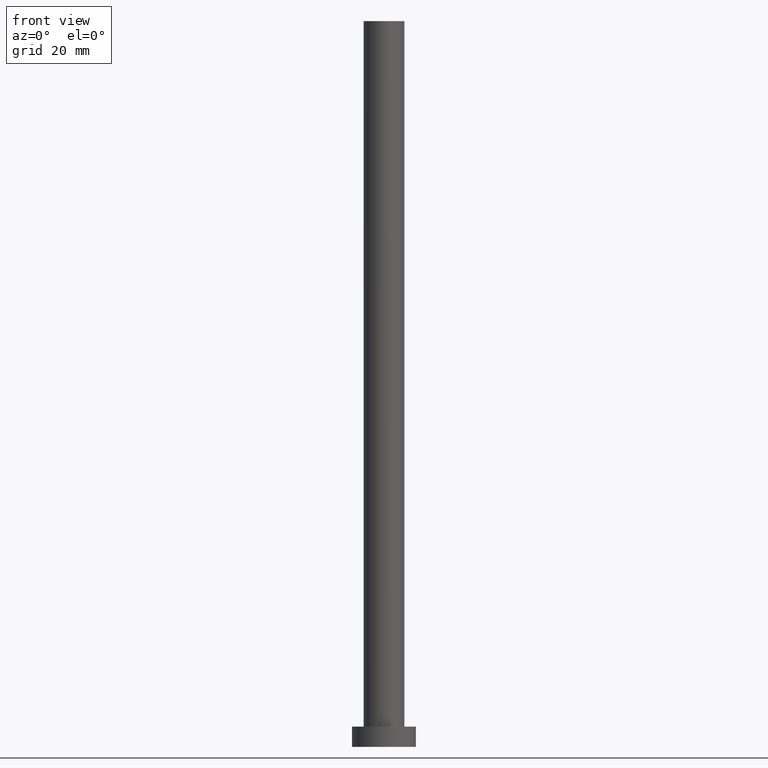
[diagram: clean part render]
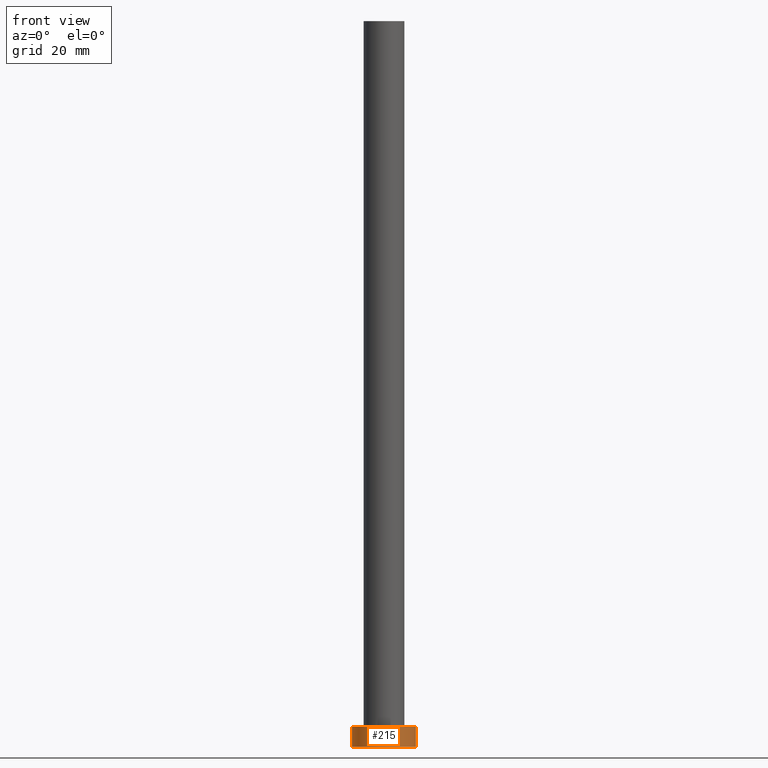
[diagram: same view with one face highlighted and labeled with its STEP entity id]
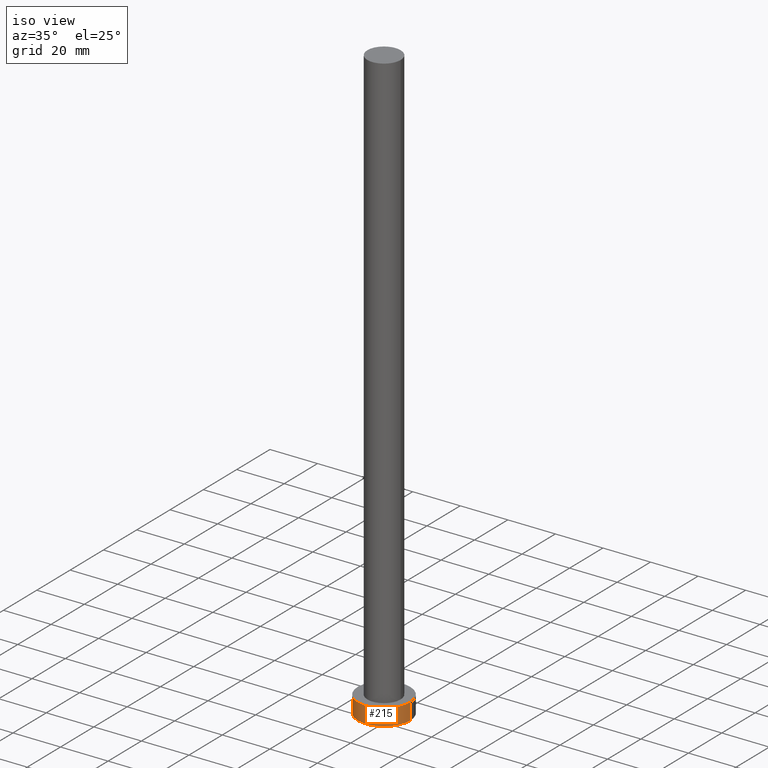
[diagram: same view with one face highlighted and labeled with its STEP entity id]
A machine part, front view. The second image highlights one B-rep face of the part: STEP entity #215.
A second angle (iso view) of the same face is appended — the face is thin or edge-on in the first view.
In plain terms, the highlighted cylindrical surface (edge-blend (fillet) strip) has radius 11 mm, axis along (-0, -0, -1).
Its self-contained STEP definition (entity closure, byte-faithful):
#2 = VERTEX_POINT ( 'NONE', #172 ) ;
#6 = EDGE_CURVE ( 'NONE', #127, #255, #124, .T. ) ;
#12 = CARTESIAN_POINT ( 'NONE',  ( -11.00000000000000000, 0.000000000000000000, 7.000000000000000000 ) ) ;
#22 = EDGE_CURVE ( 'NONE', #255, #2, #184, .T. ) ;
#29 = ORIENTED_EDGE ( 'NONE', *, *, #187, .F. ) ;
#33 = ORIENTED_EDGE ( 'NONE', *, *, #6, .T. ) ;
#42 = CARTESIAN_POINT ( 'NONE',  ( -11.00000000000000000, 0.000000000000000000, 0.000000000000000000 ) ) ;
#44 = VECTOR ( 'NONE', #192, 1000.000000000000000 ) ;
#49 = AXIS2_PLACEMENT_3D ( 'NONE', #140, #97, #176 ) ;
#60 = DIRECTION ( 'NONE',  ( -0.000000000000000000, -0.000000000000000000, -1.000000000000000000 ) ) ;
#64 = CYLINDRICAL_SURFACE ( 'NONE', #49, 11.00000000000000000 ) ;
#65 = DIRECTION ( 'NONE',  ( 0.000000000000000000, 0.000000000000000000, 1.000000000000000000 ) ) ;
#66 = CARTESIAN_POINT ( 'NONE',  ( 0.000000000000000000, 0.000000000000000000, 7.000000000000000000 ) ) ;
#79 = DIRECTION ( 'NONE',  ( 1.000000000000000000, 0.000000000000000000, 0.000000000000000000 ) ) ;
#82 = EDGE_CURVE ( 'NONE', #127, #98, #194, .T. ) ;
#97 = DIRECTION ( 'NONE',  ( -0.000000000000000000, -0.000000000000000000, -1.000000000000000000 ) ) ;
#98 = VERTEX_POINT ( 'NONE', #138 ) ;
#120 = FACE_OUTER_BOUND ( 'NONE', #200, .T. ) ;
#122 = DIRECTION ( 'NONE',  ( 1.000000000000000000, 0.000000000000000000, 0.000000000000000000 ) ) ;
#124 = LINE ( 'NONE', #125, #44 ) ;
#125 = CARTESIAN_POINT ( 'NONE',  ( -11.00000000000000000, 0.000000000000000000, 7.000000000000000000 ) ) ;
#127 = VERTEX_POINT ( 'NONE', #12 ) ;
#138 = CARTESIAN_POINT ( 'NONE',  ( 11.00000000000000000, 1.347111479062088405E-15, 7.000000000000000000 ) ) ;
#140 = CARTESIAN_POINT ( 'NONE',  ( 0.000000000000000000, 0.000000000000000000, 7.000000000000000000 ) ) ;
#143 = LINE ( 'NONE', #252, #167 ) ;
#148 = ORIENTED_EDGE ( 'NONE', *, *, #82, .F. ) ;
#156 = AXIS2_PLACEMENT_3D ( 'NONE', #66, #211, #122 ) ;
#167 = VECTOR ( 'NONE', #60, 1000.000000000000000 ) ;
#172 = CARTESIAN_POINT ( 'NONE',  ( 11.00000000000000000, 1.347111479062088405E-15, 0.000000000000000000 ) ) ;
#176 = DIRECTION ( 'NONE',  ( -1.000000000000000000, 0.000000000000000000, 0.000000000000000000 ) ) ;
#184 = CIRCLE ( 'NONE', #248, 11.00000000000000000 ) ;
#187 = EDGE_CURVE ( 'NONE', #98, #2, #143, .T. ) ;
#192 = DIRECTION ( 'NONE',  ( -0.000000000000000000, -0.000000000000000000, -1.000000000000000000 ) ) ;
#194 = CIRCLE ( 'NONE', #156, 11.00000000000000000 ) ;
#200 = EDGE_LOOP ( 'NONE', ( #29, #148, #33, #204 ) ) ;
#204 = ORIENTED_EDGE ( 'NONE', *, *, #22, .T. ) ;
#211 = DIRECTION ( 'NONE',  ( 0.000000000000000000, 0.000000000000000000, 1.000000000000000000 ) ) ;
#215 = ADVANCED_FACE ( 'NONE', ( #120 ), #64, .T. ) ;
#248 = AXIS2_PLACEMENT_3D ( 'NONE', #253, #65, #79 ) ;
#252 = CARTESIAN_POINT ( 'NONE',  ( 11.00000000000000000, 1.347111479062088405E-15, 7.000000000000000000 ) ) ;
#253 = CARTESIAN_POINT ( 'NONE',  ( 0.000000000000000000, 0.000000000000000000, 0.000000000000000000 ) ) ;
#255 = VERTEX_POINT ( 'NONE', #42 ) ;